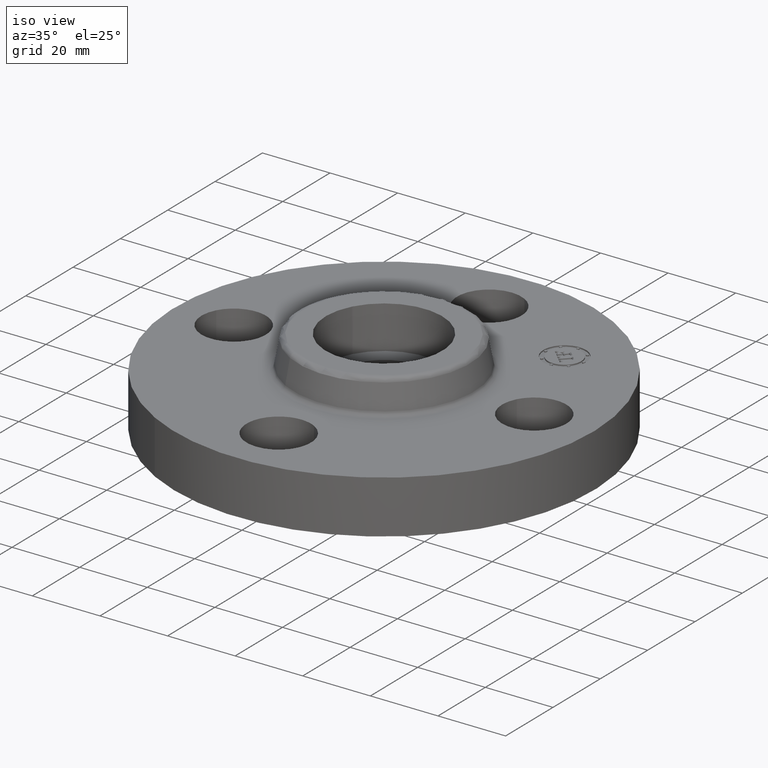
[diagram: clean part render]
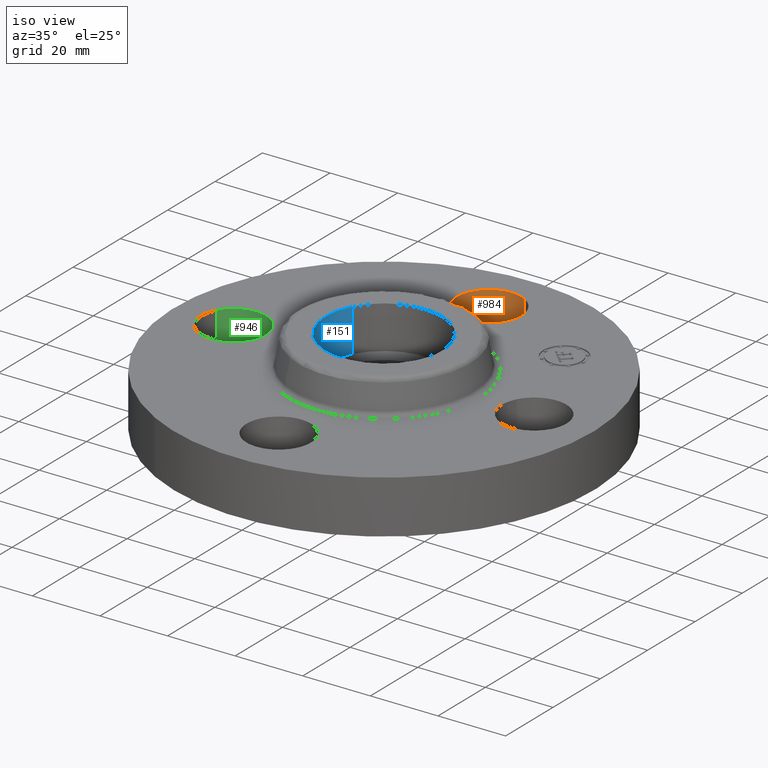
[diagram: same view with three faces highlighted in distinct colors, each labeled with its STEP entity id]
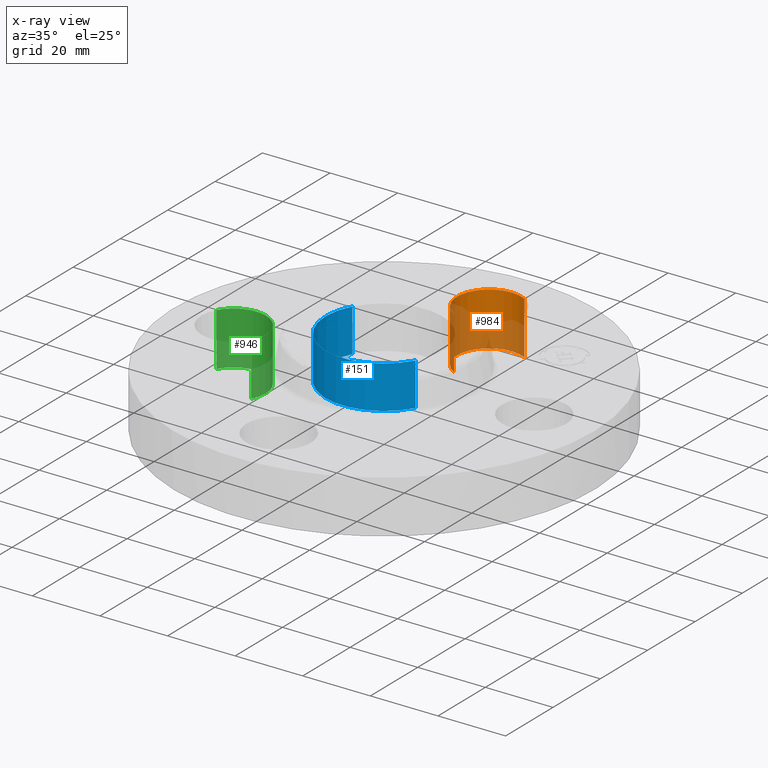
[diagram: x-ray of the same camera — body ghosted, the three highlighted faces saturated]
A machine part, iso view with three faces highlighted in distinct colors.
The next image is the same camera in x-ray (body ghosted, the three faces saturated) — at least one of them is partly hidden behind the body in this view.
Their STEP definitions:

[orange] entity #984 — the highlighted cylindrical surface (partial cylindrical patch) has radius 9.525 mm, axis along (-0, 0, -1).
#572=AXIS2_PLACEMENT_3D('Circle Axis2P3D',#570,#571,$) ;
#957=AXIS2_PLACEMENT_3D('Cylinder Axis2P3D',#954,#955,#956) ;
#975=AXIS2_PLACEMENT_3D('Circle Axis2P3D',#973,#974,$) ;
#570=CARTESIAN_POINT('Axis2P3D Location',(-3.49676543189E-017,1.75000000003,0.)) ;
#574=CARTESIAN_POINT('Vertex',(-0.179784576973,1.42090653933,0.)) ;
#576=CARTESIAN_POINT('Vertex',(0.179784576973,2.07909346073,0.)) ;
#954=CARTESIAN_POINT('Axis2P3D Location',(-3.21469784777E-016,1.75000000001,0.616062992128)) ;
#959=CARTESIAN_POINT('Line Origine',(-0.179784576977,1.4209065393,0.309999999994)) ;
#963=CARTESIAN_POINT('Vertex',(-0.179784576973,1.42090653929,0.620000000002)) ;
#966=CARTESIAN_POINT('Line Origine',(0.179784576977,2.07909346072,0.309999999994)) ;
#970=CARTESIAN_POINT('Vertex',(0.179784576977,2.07909346072,0.619999999987)) ;
#973=CARTESIAN_POINT('Axis2P3D Location',(-3.21469784777E-016,1.75000000001,0.619999999987)) ;
#571=DIRECTION('Axis2P3D Direction',(0.,0.,-0.0393700787402)) ;
#955=DIRECTION('Axis2P3D Direction',(-0.,0.,-0.0393700787402)) ;
#956=DIRECTION('Axis2P3D XDirection',(-0.0188750212049,-0.0345504945626,0.)) ;
#960=DIRECTION('Vector Direction',(0.,0.,-0.0393700787402)) ;
#967=DIRECTION('Vector Direction',(0.,0.,-0.0393700787402)) ;
#974=DIRECTION('Axis2P3D Direction',(-0.,0.,-0.0393700787402)) ;
#961=VECTOR('Line Direction',#960,0.0393700787402) ;
#968=VECTOR('Line Direction',#967,0.0393700787402) ;
#979=ORIENTED_EDGE('',*,*,#965,.F.) ;
#980=ORIENTED_EDGE('',*,*,#578,.T.) ;
#981=ORIENTED_EDGE('',*,*,#972,.T.) ;
#982=ORIENTED_EDGE('',*,*,#977,.F.) ;
#984=ADVANCED_FACE('PartBody',(#983),#958,.F.) ;
#573=CIRCLE('generated circle',#572,0.374999999988) ;
#976=CIRCLE('generated circle',#975,0.375000000001) ;
#958=CYLINDRICAL_SURFACE('generated cylinder',#957,0.375000000001) ;
#578=EDGE_CURVE('',#575,#577,#573,.T.) ;
#965=EDGE_CURVE('',#575,#964,#962,.F.) ;
#972=EDGE_CURVE('',#577,#971,#969,.F.) ;
#977=EDGE_CURVE('',#964,#971,#976,.T.) ;
#978=EDGE_LOOP('',(#979,#980,#981,#982)) ;
#983=FACE_OUTER_BOUND('',#978,.T.) ;
#962=LINE('Line',#959,#961) ;
#969=LINE('Line',#966,#968) ;
#575=VERTEX_POINT('',#574) ;
#577=VERTEX_POINT('',#576) ;
#964=VERTEX_POINT('',#963) ;
#971=VERTEX_POINT('',#970) ;

[blue] entity #151 — the highlighted cylindrical surface (partial cylindrical patch) has radius 17.272 mm, axis along (0, 0, -1).
#51=AXIS2_PLACEMENT_3D('Circle Axis2P3D',#49,#50,$) ;
#138=AXIS2_PLACEMENT_3D('Cylinder Axis2P3D',#135,#136,#137) ;
#142=AXIS2_PLACEMENT_3D('Circle Axis2P3D',#140,#141,$) ;
#44=CARTESIAN_POINT('Vertex',(-0.596756142102,0.326009366265,0.500000000002)) ;
#46=CARTESIAN_POINT('Vertex',(0.596756142102,-0.326009366265,0.500000000002)) ;
#49=CARTESIAN_POINT('Axis2P3D Location',(6.99353086382E-017,3.1470888887E-016,0.500000000002)) ;
#106=CARTESIAN_POINT('Vertex',(-0.596756142102,0.326009366287,1.)) ;
#108=CARTESIAN_POINT('Vertex',(0.596756142102,-0.326009366244,1.)) ;
#111=CARTESIAN_POINT('Line Origine',(-0.596756142088,0.326009366253,0.750000000001)) ;
#116=CARTESIAN_POINT('Line Origine',(0.596756142088,-0.326009366253,0.750000000001)) ;
#135=CARTESIAN_POINT('Axis2P3D Location',(1.39870617276E-016,1.04902962957E-016,0.99606299213)) ;
#140=CARTESIAN_POINT('Axis2P3D Location',(1.39870617276E-016,1.04902962957E-016,0.999999999989)) ;
#50=DIRECTION('Axis2P3D Direction',(0.,0.,-0.0393700787402)) ;
#112=DIRECTION('Vector Direction',(0.,0.,-0.0393700787402)) ;
#117=DIRECTION('Vector Direction',(0.,0.,-0.0393700787402)) ;
#136=DIRECTION('Axis2P3D Direction',(0.,0.,-0.0393700787402)) ;
#137=DIRECTION('Axis2P3D XDirection',(0.0345504945626,-0.0188750212049,0.)) ;
#141=DIRECTION('Axis2P3D Direction',(0.,0.,-0.0393700787402)) ;
#113=VECTOR('Line Direction',#112,0.0393700787402) ;
#118=VECTOR('Line Direction',#117,0.0393700787402) ;
#146=ORIENTED_EDGE('',*,*,#144,.F.) ;
#147=ORIENTED_EDGE('',*,*,#120,.F.) ;
#148=ORIENTED_EDGE('',*,*,#53,.T.) ;
#149=ORIENTED_EDGE('',*,*,#115,.T.) ;
#151=ADVANCED_FACE('PartBody',(#150),#139,.F.) ;
#52=CIRCLE('generated circle',#51,0.680000000022) ;
#143=CIRCLE('generated circle',#142,0.680000000003) ;
#139=CYLINDRICAL_SURFACE('generated cylinder',#138,0.680000000003) ;
#53=EDGE_CURVE('',#47,#45,#52,.T.) ;
#115=EDGE_CURVE('',#45,#107,#114,.F.) ;
#120=EDGE_CURVE('',#47,#109,#119,.F.) ;
#144=EDGE_CURVE('',#109,#107,#143,.T.) ;
#145=EDGE_LOOP('',(#146,#147,#148,#149)) ;
#150=FACE_OUTER_BOUND('',#145,.T.) ;
#114=LINE('Line',#111,#113) ;
#119=LINE('Line',#116,#118) ;
#45=VERTEX_POINT('',#44) ;
#47=VERTEX_POINT('',#46) ;
#107=VERTEX_POINT('',#106) ;
#109=VERTEX_POINT('',#108) ;

[green] entity #946 — the highlighted cylindrical surface (partial cylindrical patch) has radius 9.525 mm, axis along (0, -0, -1).
#563=AXIS2_PLACEMENT_3D('Circle Axis2P3D',#561,#562,$) ;
#921=AXIS2_PLACEMENT_3D('Cylinder Axis2P3D',#918,#919,#920) ;
#556=CARTESIAN_POINT('Vertex',(-1.42090653927,-0.179784576988,0.)) ;
#558=CARTESIAN_POINT('Vertex',(-2.07909346074,0.179784576959,0.)) ;
#561=CARTESIAN_POINT('Axis2P3D Location',(-1.75000000001,-2.74782821169E-011,0.)) ;
#885=CARTESIAN_POINT('Line Origine',(-1.4209065393,-0.179784576978,0.309999999994)) ;
#889=CARTESIAN_POINT('Vertex',(-1.42090653927,-0.179784576955,0.620000000002)) ;
#892=CARTESIAN_POINT('Line Origine',(-2.07909346072,0.179784576978,0.309999999994)) ;
#896=CARTESIAN_POINT('Vertex',(-2.07909346072,0.179784576978,0.619999999987)) ;
#918=CARTESIAN_POINT('Axis2P3D Location',(-1.75000000001,-2.14313189852E-016,0.616062992128)) ;
#924=CARTESIAN_POINT('Control Point',(-2.07909346072,0.179784576978,0.620000000002)) ;
#925=CARTESIAN_POINT('Control Point',(-2.05085296541,0.231478456903,0.620000000001)) ;
#926=CARTESIAN_POINT('Control Point',(-2.01246240051,0.277627328541,0.620000000001)) ;
#927=CARTESIAN_POINT('Control Point',(-1.96536533168,0.315564920646,0.62)) ;
#928=CARTESIAN_POINT('Control Point',(-1.85883359426,0.370929207244,0.619999999998)) ;
#929=CARTESIAN_POINT('Control Point',(-1.73927677655,0.381901109851,0.619999999997)) ;
#930=CARTESIAN_POINT('Control Point',(-1.67914819117,0.375424381749,0.619999999996)) ;
#931=CARTESIAN_POINT('Control Point',(-1.56467041474,0.339243530299,0.619999999995)) ;
#932=CARTESIAN_POINT('Control Point',(-1.47237267147,0.262462400496,0.619999999993)) ;
#933=CARTESIAN_POINT('Control Point',(-1.43443507936,0.215365331668,0.619999999992)) ;
#934=CARTESIAN_POINT('Control Point',(-1.37907079277,0.108833594252,0.619999999991)) ;
#935=CARTESIAN_POINT('Control Point',(-1.36809889016,-0.0107232234563,0.61999999999)) ;
#936=CARTESIAN_POINT('Control Point',(-1.37457561826,-0.070851808838,0.619999999989)) ;
#937=CARTESIAN_POINT('Control Point',(-1.39266604399,-0.128090697052,0.619999999988)) ;
#938=CARTESIAN_POINT('Control Point',(-1.4209065393,-0.179784576977,0.619999999987)) ;
#562=DIRECTION('Axis2P3D Direction',(0.,0.,-0.0393700787402)) ;
#886=DIRECTION('Vector Direction',(0.,0.,-0.0393700787402)) ;
#893=DIRECTION('Vector Direction',(0.,0.,-0.0393700787402)) ;
#919=DIRECTION('Axis2P3D Direction',(0.,-0.,-0.0393700787402)) ;
#920=DIRECTION('Axis2P3D XDirection',(-0.0345504945626,0.0188750212049,0.)) ;
#887=VECTOR('Line Direction',#886,0.0393700787402) ;
#894=VECTOR('Line Direction',#893,0.0393700787402) ;
#941=ORIENTED_EDGE('',*,*,#898,.F.) ;
#942=ORIENTED_EDGE('',*,*,#565,.T.) ;
#943=ORIENTED_EDGE('',*,*,#891,.T.) ;
#944=ORIENTED_EDGE('',*,*,#939,.F.) ;
#946=ADVANCED_FACE('PartBody',(#945),#922,.F.) ;
#923=B_SPLINE_CURVE_WITH_KNOTS('',5,(#924,#925,#926,#927,#928,#929,#930,#931,#932,#933,#934,#935,#936,#937,#938),.UNSPECIFIED.,.F.,.U.,(6,3,3,3,6),(-14.9618350128,-7.4809175064,0.,7.4809175064,14.9618350128),.UNSPECIFIED.) ;
#564=CIRCLE('generated circle',#563,0.375000000021) ;
#922=CYLINDRICAL_SURFACE('generated cylinder',#921,0.375000000002) ;
#565=EDGE_CURVE('',#559,#557,#564,.T.) ;
#891=EDGE_CURVE('',#557,#890,#888,.F.) ;
#898=EDGE_CURVE('',#559,#897,#895,.F.) ;
#939=EDGE_CURVE('',#897,#890,#923,.T.) ;
#940=EDGE_LOOP('',(#941,#942,#943,#944)) ;
#945=FACE_OUTER_BOUND('',#940,.T.) ;
#888=LINE('Line',#885,#887) ;
#895=LINE('Line',#892,#894) ;
#557=VERTEX_POINT('',#556) ;
#559=VERTEX_POINT('',#558) ;
#890=VERTEX_POINT('',#889) ;
#897=VERTEX_POINT('',#896) ;